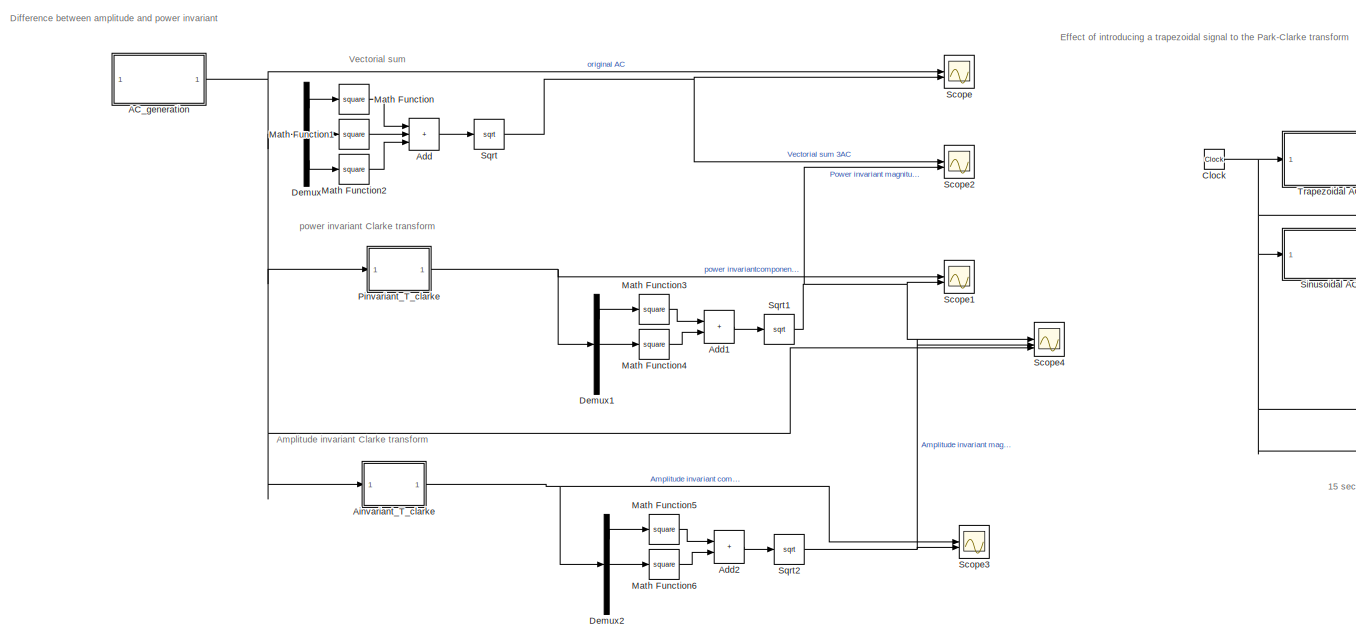
[diagram: root canvas - part 1/3, central region]
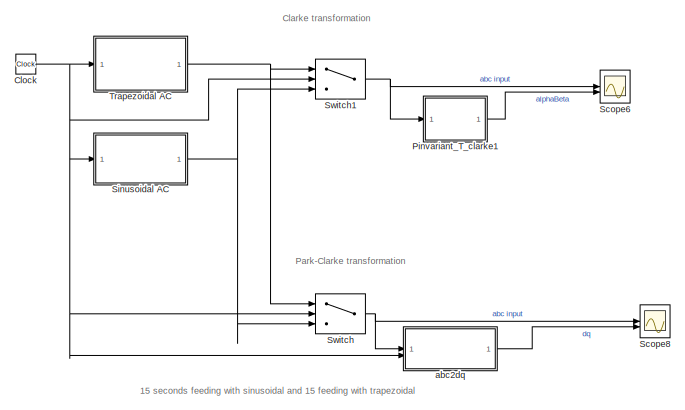
[diagram: root canvas - part 2/3, top right region]
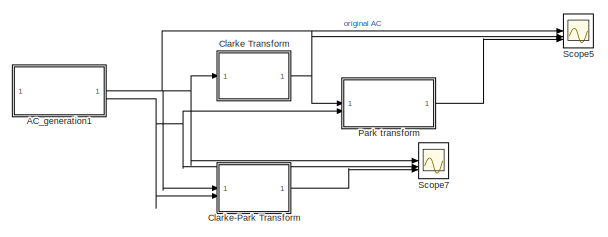
[diagram: root canvas - part 3/3, bottom center region]
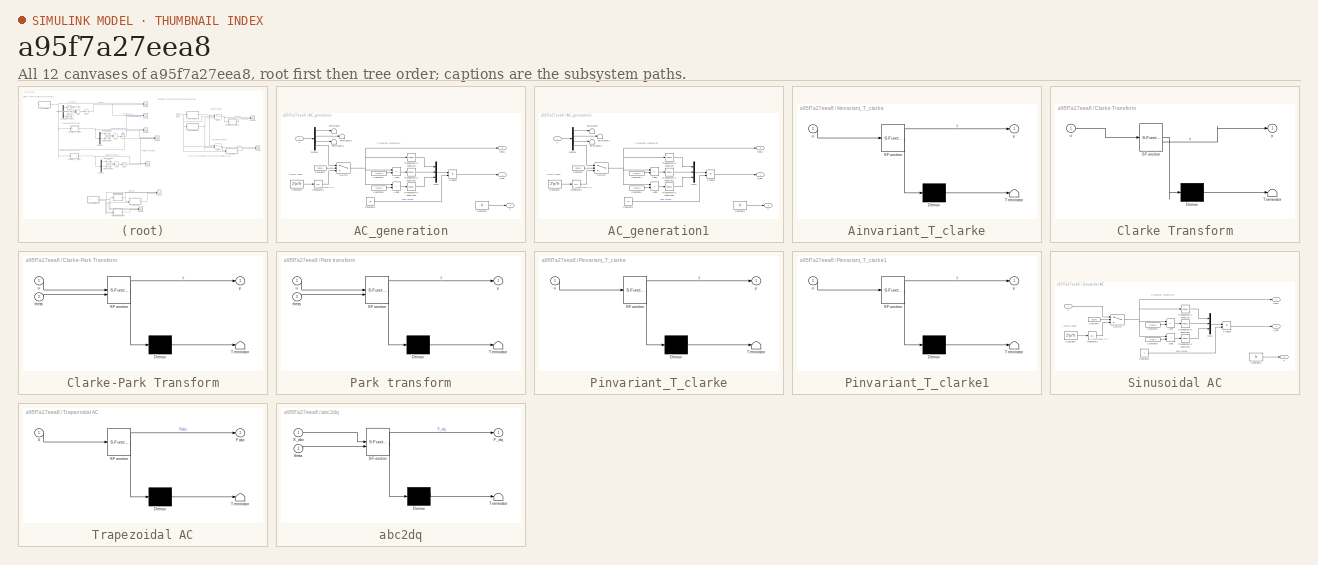
[diagram: thumbnail index - all 12 canvases of the model, root first then tree order]
MODEL slx_a95f7a27eea8
KIND model
CONFIG AbsTol = auto
CONFIG EnableMultiTasking = off
CONFIG FixedStep = 0.0001
CONFIG MaxStep = auto
CONFIG MinStep = auto
CONFIG RelTol = 1e-3
CONFIG SampleTimeConstraint = Unconstrained
CONFIG SolverName = FixedStepAuto
CONFIG StartTime = 0.0
CONFIG StopTime = 2
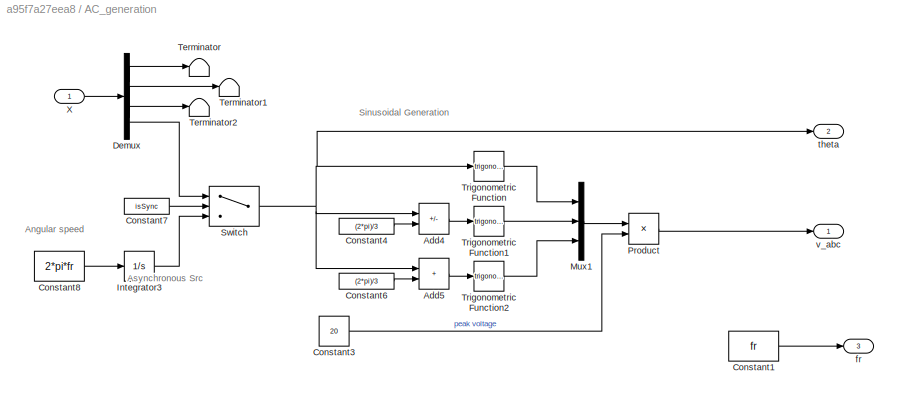
BLOCK [SubSystem] AC_generation
BLOCK [Sum] AC_generation/Add4
  IconShape = rectangular
  Inputs = +-
BLOCK [Sum] AC_generation/Add5
  IconShape = rectangular
BLOCK [Constant] AC_generation/Constant1
  Value = fr
BLOCK [Constant] AC_generation/Constant3
  Value = 20
BLOCK [Constant] AC_generation/Constant4
  Value = (2*pi)/3
BLOCK [Constant] AC_generation/Constant6
  Value = (2*pi)/3
BLOCK [Constant] AC_generation/Constant7
  Value = isSync
BLOCK [Constant] AC_generation/Constant8
  Value = 2*pi*fr
BLOCK [Demux] AC_generation/Demux
BLOCK [Integrator] AC_generation/Integrator3
BLOCK [Mux] AC_generation/Mux1
  DisplayOption = bar
  Inputs = 3
BLOCK [Product] AC_generation/Product
BLOCK [Switch] AC_generation/Switch
  Criteria = u2 > Threshold
  InputSameDT = off
  SaturateOnIntegerOverflow = off
BLOCK [Terminator] AC_generation/Terminator
BLOCK [Terminator] AC_generation/Terminator1
BLOCK [Terminator] AC_generation/Terminator2
BLOCK [Trigonometry] AC_generation/Trigonometric Function
BLOCK [Trigonometry] AC_generation/Trigonometric Function1
BLOCK [Trigonometry] AC_generation/Trigonometric Function2
BLOCK [Inport] AC_generation/X
BLOCK [Outport] AC_generation/fr
  Port = 3
BLOCK [Outport] AC_generation/theta
  Port = 2
BLOCK [Outport] AC_generation/v_abc
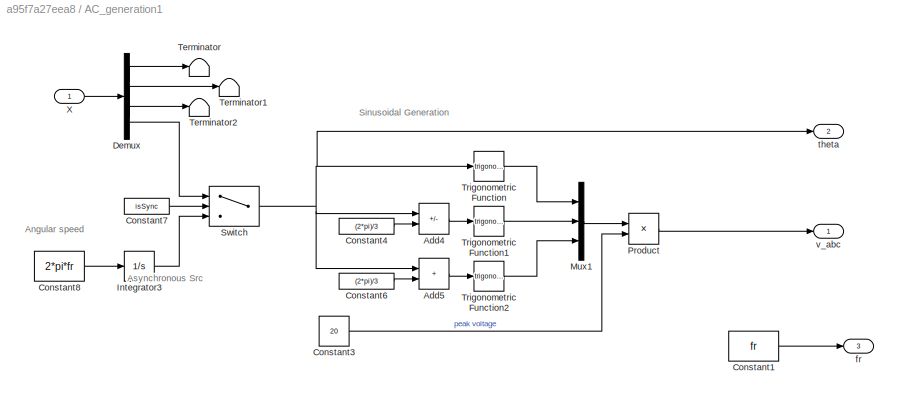
BLOCK [SubSystem] AC_generation1
BLOCK [Sum] AC_generation1/Add4
  IconShape = rectangular
  Inputs = +-
BLOCK [Sum] AC_generation1/Add5
  IconShape = rectangular
BLOCK [Constant] AC_generation1/Constant1
  Value = fr
BLOCK [Constant] AC_generation1/Constant3
  Value = 20
BLOCK [Constant] AC_generation1/Constant4
  Value = (2*pi)/3
BLOCK [Constant] AC_generation1/Constant6
  Value = (2*pi)/3
BLOCK [Constant] AC_generation1/Constant7
  Value = isSync
BLOCK [Constant] AC_generation1/Constant8
  Value = 2*pi*fr
BLOCK [Demux] AC_generation1/Demux
BLOCK [Integrator] AC_generation1/Integrator3
BLOCK [Mux] AC_generation1/Mux1
  DisplayOption = bar
  Inputs = 3
BLOCK [Product] AC_generation1/Product
BLOCK [Switch] AC_generation1/Switch
  Criteria = u2 > Threshold
  InputSameDT = off
  SaturateOnIntegerOverflow = off
BLOCK [Terminator] AC_generation1/Terminator
BLOCK [Terminator] AC_generation1/Terminator1
BLOCK [Terminator] AC_generation1/Terminator2
BLOCK [Trigonometry] AC_generation1/Trigonometric Function
BLOCK [Trigonometry] AC_generation1/Trigonometric Function1
BLOCK [Trigonometry] AC_generation1/Trigonometric Function2
BLOCK [Inport] AC_generation1/X
BLOCK [Outport] AC_generation1/fr
  Port = 3
BLOCK [Outport] AC_generation1/theta
  Port = 2
BLOCK [Outport] AC_generation1/v_abc
BLOCK [Sum] Add
  IconShape = rectangular
  Inputs = +++
BLOCK [Sum] Add1
  IconShape = rectangular
BLOCK [Sum] Add2
  IconShape = rectangular
BLOCK [SubSystem] Ainvariant_T_clarke
  ErrorFcn = Stateflow.Translate.translate
  PermitHierarchicalResolution = ExplicitOnly
  SFBlockType = MATLAB Function
  TreatAsAtomicUnit = on
BLOCK [Demux] Ainvariant_T_clarke/ Demux 
  Outputs = 1
BLOCK [S-Function] Ainvariant_T_clarke/ SFunction 
  EnableBusSupport = on
  FunctionName = sf_sfun
  PortCounts = [1 2]
  SFcnIsStateOwnerBlock = off
  SFunctionDeploymentMode = off
  Tag = Stateflow S-Function 1
BLOCK [Terminator] Ainvariant_T_clarke/ Terminator 
BLOCK [Inport] Ainvariant_T_clarke/u
BLOCK [Outport] Ainvariant_T_clarke/y
BLOCK [SubSystem] Clarke Transform
  ErrorFcn = Stateflow.Translate.translate
  LibrarySourceBlock = simulink/User-Defined\nFunctions/MATLAB Function
  PermitHierarchicalResolution = ExplicitOnly
  SFBlockType = MATLAB Function
  TreatAsAtomicUnit = on
BLOCK [Demux] Clarke Transform/ Demux 
  Outputs = 1
BLOCK [S-Function] Clarke Transform/ SFunction 
  EnableBusSupport = on
  FunctionName = sf_sfun
  PortCounts = [1 2]
  SFcnIsStateOwnerBlock = off
  SFunctionDeploymentMode = off
  Tag = Stateflow S-Function 4
BLOCK [Terminator] Clarke Transform/ Terminator 
BLOCK [Inport] Clarke Transform/u
BLOCK [Outport] Clarke Transform/y
BLOCK [SubSystem] Clarke-Park Transform
  ErrorFcn = Stateflow.Translate.translate
  LibrarySourceBlock = simulink/User-Defined\nFunctions/MATLAB Function
  PermitHierarchicalResolution = ExplicitOnly
  SFBlockType = MATLAB Function
  TreatAsAtomicUnit = on
BLOCK [Demux] Clarke-Park Transform/ Demux 
  Outputs = 1
BLOCK [S-Function] Clarke-Park Transform/ SFunction 
  EnableBusSupport = on
  FunctionName = sf_sfun
  PortCounts = [2 2]
  SFcnIsStateOwnerBlock = off
  SFunctionDeploymentMode = off
  Tag = Stateflow S-Function 7
BLOCK [Terminator] Clarke-Park Transform/ Terminator 
BLOCK [Inport] Clarke-Park Transform/theta
  Port = 2
BLOCK [Inport] Clarke-Park Transform/u
BLOCK [Outport] Clarke-Park Transform/y
BLOCK [Clock] Clock
BLOCK [Demux] Demux
  Outputs = 3
BLOCK [Demux] Demux1
  Outputs = 3
BLOCK [Demux] Demux2
  Outputs = 3
BLOCK [Math] Math Function
  Operator = square
BLOCK [Math] Math Function1
  Operator = square
BLOCK [Math] Math Function2
  Operator = square
BLOCK [Math] Math Function3
  Operator = square
BLOCK [Math] Math Function4
  Operator = square
BLOCK [Math] Math Function5
  Operator = square
BLOCK [Math] Math Function6
  Operator = square
BLOCK [SubSystem] Park transform
  ErrorFcn = Stateflow.Translate.translate
  LibrarySourceBlock = simulink/User-Defined\nFunctions/MATLAB Function
  PermitHierarchicalResolution = ExplicitOnly
  SFBlockType = MATLAB Function
  TreatAsAtomicUnit = on
BLOCK [Demux] Park transform/ Demux 
  Outputs = 1
BLOCK [S-Function] Park transform/ SFunction 
  EnableBusSupport = on
  FunctionName = sf_sfun
  PortCounts = [2 2]
  SFcnIsStateOwnerBlock = off
  SFunctionDeploymentMode = off
  Tag = Stateflow S-Function 5
BLOCK [Terminator] Park transform/ Terminator 
BLOCK [Inport] Park transform/theta
  Port = 2
BLOCK [Inport] Park transform/u
BLOCK [Outport] Park transform/y
BLOCK [SubSystem] Pinvariant_T_clarke
  ErrorFcn = Stateflow.Translate.translate
  PermitHierarchicalResolution = ExplicitOnly
  SFBlockType = MATLAB Function
  TreatAsAtomicUnit = on
BLOCK [Demux] Pinvariant_T_clarke/ Demux 
  Outputs = 1
BLOCK [S-Function] Pinvariant_T_clarke/ SFunction 
  EnableBusSupport = on
  FunctionName = sf_sfun
  PortCounts = [1 2]
  SFcnIsStateOwnerBlock = off
  SFunctionDeploymentMode = off
  Tag = Stateflow S-Function 2
BLOCK [Terminator] Pinvariant_T_clarke/ Terminator 
BLOCK [Inport] Pinvariant_T_clarke/u
BLOCK [Outport] Pinvariant_T_clarke/y
BLOCK [SubSystem] Pinvariant_T_clarke1
  ErrorFcn = Stateflow.Translate.translate
  PermitHierarchicalResolution = ExplicitOnly
  SFBlockType = MATLAB Function
  TreatAsAtomicUnit = on
BLOCK [Demux] Pinvariant_T_clarke1/ Demux 
  Outputs = 1
BLOCK [S-Function] Pinvariant_T_clarke1/ SFunction 
  EnableBusSupport = on
  FunctionName = sf_sfun
  PortCounts = [1 2]
  SFcnIsStateOwnerBlock = off
  SFunctionDeploymentMode = off
  Tag = Stateflow S-Function 3
BLOCK [Terminator] Pinvariant_T_clarke1/ Terminator 
BLOCK [Inport] Pinvariant_T_clarke1/u
BLOCK [Outport] Pinvariant_T_clarke1/y
BLOCK [Scope] Scope
  Floating = off
  NumInputPorts = 2
  ScopeSpecificationString = Simulink.scopes.TimeScopeBlockCfg('CurrentConfiguration', extmgr.ConfigurationSet(extmgr.Configuration('Core','General UI',true),extmgr.Configuration('Core','Source UI',true),extmgr.Configuration('Sources','WiredSimulink',true),extmgr.Configuration('Visuals','Time Domain',true,'SerializedDisplays',{struct('MinYLimReal','-25.56186','MaxYLimReal','30.05676','YLabelReal','','MinYLimMag','0.00000','Ma...<+1445ch>
BLOCK [Scope] Scope1
  Floating = off
  NumInputPorts = 2
  ScopeSpecificationString = Simulink.scopes.TimeScopeBlockCfg('CurrentConfiguration', extmgr.ConfigurationSet(extmgr.Configuration('Core','General UI',true),extmgr.Configuration('Core','Source UI',true),extmgr.Configuration('Sources','WiredSimulink',true,'DataLoggingVariableName','ScopeData1'),extmgr.Configuration('Visuals','Time Domain',true,'SerializedDisplays',{struct('MinYLimReal','-30.61862','MaxYLimReal','30.61862','YL...<+1541ch>
BLOCK [Scope] Scope2
  Floating = off
  NumInputPorts = 2
  ScopeSpecificationString = Simulink.scopes.TimeScopeBlockCfg('CurrentConfiguration', extmgr.ConfigurationSet(extmgr.Configuration('Core','General UI',true),extmgr.Configuration('Core','Source UI',true),extmgr.Configuration('Sources','WiredSimulink',true,'DataLoggingVariableName','ScopeData2'),extmgr.Configuration('Visuals','Time Domain',true,'SerializedDisplays',{struct('MinYLimReal','24.4948974278292','MaxYLimReal','24.494...<+1554ch>
BLOCK [Scope] Scope3
  Floating = off
  NumInputPorts = 2
  ScopeSpecificationString = Simulink.scopes.TimeScopeBlockCfg('CurrentConfiguration', extmgr.ConfigurationSet(extmgr.Configuration('Core','General UI',true),extmgr.Configuration('Core','Source UI',true),extmgr.Configuration('Sources','WiredSimulink',true,'DataLoggingVariableName','ScopeData3'),extmgr.Configuration('Visuals','Time Domain',true,'SerializedDisplays',{struct('MinYLimReal','-25.00000','MaxYLimReal','25.00000','YL...<+1517ch>
BLOCK [Scope] Scope4
  Floating = off
  NumInputPorts = 3
  ScopeSpecificationString = Simulink.scopes.TimeScopeBlockCfg('CurrentConfiguration', extmgr.ConfigurationSet(extmgr.Configuration('Core','General UI',true,'FigureColor',[1 1 1]),extmgr.Configuration('Core','Source UI',true),extmgr.Configuration('Sources','WiredSimulink',true,'DataLoggingVariableName','ScopeData4'),extmgr.Configuration('Visuals','Time Domain',true,'SerializedDisplays',{struct('MinYLimReal','-25.56186','MaxYL...<+2292ch>
BLOCK [Scope] Scope5
  Floating = off
  NumInputPorts = 3
  ScopeSpecificationString = Simulink.scopes.TimeScopeBlockCfg('CurrentConfiguration', extmgr.ConfigurationSet(extmgr.Configuration('Core','General UI',true,'FigureColor',[1 1 1]),extmgr.Configuration('Core','Source UI',true),extmgr.Configuration('Sources','WiredSimulink',true,'DataLoggingVariableName','ScopeData1'),extmgr.Configuration('Visuals','Time Domain',true,'PlotType','Line','SerializedDisplays',{struct('MinYLimReal',...<+3903ch>
BLOCK [Scope] Scope6
  Floating = off
  NumInputPorts = 2
  ScopeSpecificationString = Simulink.scopes.TimeScopeBlockCfg('CurrentConfiguration', extmgr.ConfigurationSet(extmgr.Configuration('Core','General UI',true),extmgr.Configuration('Core','Source UI',true),extmgr.Configuration('Sources','WiredSimulink',true,'DataLoggingVariableName','ScopeData2'),extmgr.Configuration('Visuals','Time Domain',true,'SerializedDisplays',{struct('MinYLimReal','-1.25','MaxYLimReal','1.25','YLabelReal...<+2123ch>
BLOCK [Scope] Scope7
  Floating = off
  NumInputPorts = 3
  ScopeSpecificationString = Simulink.scopes.TimeScopeBlockCfg('CurrentConfiguration', extmgr.ConfigurationSet(extmgr.Configuration('Core','General UI',true,'FigureColor',[1 1 1]),extmgr.Configuration('Core','Source UI',true),extmgr.Configuration('Sources','WiredSimulink',true,'DataLoggingVariableName','ScopeData1'),extmgr.Configuration('Visuals','Time Domain',true,'PlotType','Line','SerializedDisplays',{struct('MinYLimReal',...<+3542ch>
BLOCK [Scope] Scope8
  Floating = off
  NumInputPorts = 2
  ScopeSpecificationString = Simulink.scopes.TimeScopeBlockCfg('CurrentConfiguration', extmgr.ConfigurationSet(extmgr.Configuration('Core','General UI',true),extmgr.Configuration('Core','Source UI',true),extmgr.Configuration('Sources','WiredSimulink',true,'DataLoggingVariableName','ScopeData1'),extmgr.Configuration('Visuals','Time Domain',true,'SerializedDisplays',{struct('MinYLimReal','-1.25','MaxYLimReal','1.25','YLabelReal...<+2095ch>
BLOCK [SubSystem] Sinusoidal AC
BLOCK [Sum] Sinusoidal AC/Add4
  IconShape = rectangular
  Inputs = +-
BLOCK [Sum] Sinusoidal AC/Add5
  IconShape = rectangular
BLOCK [Constant] Sinusoidal AC/Constant1
  Value = fr
BLOCK [Constant] Sinusoidal AC/Constant3
BLOCK [Constant] Sinusoidal AC/Constant4
  Value = (2*pi)/3
BLOCK [Constant] Sinusoidal AC/Constant6
  Value = (2*pi)/3
BLOCK [Constant] Sinusoidal AC/Constant7
  Value = isSync
BLOCK [Constant] Sinusoidal AC/Constant8
  Value = 2*pi*fr
BLOCK [Integrator] Sinusoidal AC/Integrator3
BLOCK [Mux] Sinusoidal AC/Mux1
  DisplayOption = bar
  Inputs = 3
BLOCK [Product] Sinusoidal AC/Product
BLOCK [Switch] Sinusoidal AC/Switch
  Criteria = u2 > Threshold
  InputSameDT = off
  SaturateOnIntegerOverflow = off
BLOCK [Trigonometry] Sinusoidal AC/Trigonometric Function
BLOCK [Trigonometry] Sinusoidal AC/Trigonometric Function1
BLOCK [Trigonometry] Sinusoidal AC/Trigonometric Function2
BLOCK [Inport] Sinusoidal AC/X
BLOCK [Outport] Sinusoidal AC/fr
  Port = 3
BLOCK [Outport] Sinusoidal AC/theta
  Port = 2
BLOCK [Outport] Sinusoidal AC/v_abc
BLOCK [Sqrt] Sqrt
BLOCK [Sqrt] Sqrt1
BLOCK [Sqrt] Sqrt2
BLOCK [Switch] Switch
  Criteria = u2 > Threshold
  InputSameDT = off
  SaturateOnIntegerOverflow = off
  Threshold = 15
BLOCK [Switch] Switch1
  Criteria = u2 > Threshold
  InputSameDT = off
  SaturateOnIntegerOverflow = off
  Threshold = 15
BLOCK [SubSystem] Trapezoidal AC
  ErrorFcn = Stateflow.Translate.translate
  PermitHierarchicalResolution = ExplicitOnly
  SFBlockType = MATLAB Function
  TreatAsAtomicUnit = on
BLOCK [Demux] Trapezoidal AC/ Demux 
  Outputs = 1
BLOCK [S-Function] Trapezoidal AC/ SFunction 
  EnableBusSupport = on
  FunctionName = sf_sfun
  PortCounts = [1 2]
  SFcnIsStateOwnerBlock = off
  SFunctionDeploymentMode = off
  Tag = Stateflow S-Function 11
BLOCK [Terminator] Trapezoidal AC/ Terminator 
BLOCK [Outport] Trapezoidal AC/Fabc
  VectorParamsAs1DForOutWhenUnconnected = off
BLOCK [Inport] Trapezoidal AC/X
BLOCK [SubSystem] abc2dq
  ErrorFcn = Stateflow.Translate.translate
  PermitHierarchicalResolution = ExplicitOnly
  SFBlockType = MATLAB Function
  TreatAsAtomicUnit = on
BLOCK [Demux] abc2dq/ Demux 
  Outputs = 1
BLOCK [S-Function] abc2dq/ SFunction 
  EnableBusSupport = on
  FunctionName = sf_sfun
  PortCounts = [2 2]
  SFcnIsStateOwnerBlock = off
  SFunctionDeploymentMode = off
  Tag = Stateflow S-Function 8
BLOCK [Terminator] abc2dq/ Terminator 
BLOCK [Outport] abc2dq/F_dq
  VectorParamsAs1DForOutWhenUnconnected = off
BLOCK [Inport] abc2dq/X_abc
BLOCK [Inport] abc2dq/theta
  Port = 2
ANNOTATION (root): 15 seconds feeding with sinusoidal and 15 feeding with trapezoidal
ANNOTATION (root): Difference between amplitude and power invariant
ANNOTATION (root): Clarke transformation
ANNOTATION (root): Park-Clarke transformation
ANNOTATION (root): Effect of introducing a trapezoidal signal to the Park-Clarke transform
ANNOTATION (root): Amplitude invariant Clarke transform
ANNOTATION (root): power invariant Clarke transform
ANNOTATION (root): Vectorial sum
ANNOTATION AC_generation: Angular speed
ANNOTATION AC_generation: Asynchronous Src
ANNOTATION AC_generation: Sinusoidal Generation
ANNOTATION AC_generation1: Angular speed
ANNOTATION AC_generation1: Asynchronous Src
ANNOTATION AC_generation1: Sinusoidal Generation
ANNOTATION Sinusoidal AC: Angular speed
ANNOTATION Sinusoidal AC: Asynchronous Src
ANNOTATION Sinusoidal AC: Sinusoidal Generation
LINE AC_generation/Add4:1 -> AC_generation/Trigonometric Function1:1
LINE AC_generation/Add5:1 -> AC_generation/Trigonometric Function2:1
LINE AC_generation/Constant1:1 -> AC_generation/fr:1
LINE AC_generation/Constant3:1 -> AC_generation/Product:2
LINE AC_generation/Constant4:1 -> AC_generation/Add4:2
LINE AC_generation/Constant6:1 -> AC_generation/Add5:2
LINE AC_generation/Constant7:1 -> AC_generation/Switch:2
LINE AC_generation/Constant8:1 -> AC_generation/Integrator3:1
LINE AC_generation/Demux:1 -> AC_generation/Terminator:1
LINE AC_generation/Demux:2 -> AC_generation/Terminator1:1
LINE AC_generation/Demux:3 -> AC_generation/Terminator2:1
LINE AC_generation/Demux:4 -> AC_generation/Switch:1
LINE AC_generation/Integrator3:1 -> AC_generation/Switch:3
LINE AC_generation/Mux1:1 -> AC_generation/Product:1
LINE AC_generation/Product:1 -> AC_generation/v_abc:1
NET AC_generation/Switch:1 -> AC_generation/Add4:1, AC_generation/Add5:1, AC_generation/Trigonometric Function:1, AC_generation/theta:1
LINE AC_generation/Trigonometric Function1:1 -> AC_generation/Mux1:2
LINE AC_generation/Trigonometric Function2:1 -> AC_generation/Mux1:3
LINE AC_generation/Trigonometric Function:1 -> AC_generation/Mux1:1
LINE AC_generation/X:1 -> AC_generation/Demux:1
LINE AC_generation1/Add4:1 -> AC_generation1/Trigonometric Function1:1
LINE AC_generation1/Add5:1 -> AC_generation1/Trigonometric Function2:1
LINE AC_generation1/Constant1:1 -> AC_generation1/fr:1
LINE AC_generation1/Constant3:1 -> AC_generation1/Product:2
LINE AC_generation1/Constant4:1 -> AC_generation1/Add4:2
LINE AC_generation1/Constant6:1 -> AC_generation1/Add5:2
LINE AC_generation1/Constant7:1 -> AC_generation1/Switch:2
LINE AC_generation1/Constant8:1 -> AC_generation1/Integrator3:1
LINE AC_generation1/Demux:1 -> AC_generation1/Terminator:1
LINE AC_generation1/Demux:2 -> AC_generation1/Terminator1:1
LINE AC_generation1/Demux:3 -> AC_generation1/Terminator2:1
LINE AC_generation1/Demux:4 -> AC_generation1/Switch:1
LINE AC_generation1/Integrator3:1 -> AC_generation1/Switch:3
LINE AC_generation1/Mux1:1 -> AC_generation1/Product:1
LINE AC_generation1/Product:1 -> AC_generation1/v_abc:1
NET AC_generation1/Switch:1 -> AC_generation1/Add4:1, AC_generation1/Add5:1, AC_generation1/Trigonometric Function:1, AC_generation1/theta:1
LINE AC_generation1/Trigonometric Function1:1 -> AC_generation1/Mux1:2
LINE AC_generation1/Trigonometric Function2:1 -> AC_generation1/Mux1:3
LINE AC_generation1/Trigonometric Function:1 -> AC_generation1/Mux1:1
LINE AC_generation1/X:1 -> AC_generation1/Demux:1
NET AC_generation1:1 -> Clarke Transform:1, Clarke-Park Transform:1, Scope5:1, Scope7:1
NET AC_generation1:2 -> Clarke-Park Transform:2, Park transform:2, Scope7:2
NET AC_generation:1 -> Ainvariant_T_clarke:1, Demux:1, Pinvariant_T_clarke:1, Scope4:3, Scope:1
LINE Add1:1 -> Sqrt1:1
LINE Add2:1 -> Sqrt2:1
LINE Add:1 -> Sqrt:1
NET Ainvariant_T_clarke:1 -> Demux2:1, Scope3:1
NET Clarke Transform:1 -> Park transform:1, Scope5:2
LINE Clarke-Park Transform:1 -> Scope7:3
NET Clock:1 -> Sinusoidal AC:1, Switch1:2, Switch:2, Trapezoidal AC:1, abc2dq:2
LINE Demux1:1 -> Math Function3:1
LINE Demux1:2 -> Math Function4:1
LINE Demux2:1 -> Math Function5:1
LINE Demux2:2 -> Math Function6:1
LINE Demux:1 -> Math Function:1
LINE Demux:2 -> Math Function1:1
LINE Demux:3 -> Math Function2:1
LINE Math Function1:1 -> Add:2
LINE Math Function2:1 -> Add:3
LINE Math Function3:1 -> Add1:1
LINE Math Function4:1 -> Add1:2
LINE Math Function5:1 -> Add2:1
LINE Math Function6:1 -> Add2:2
LINE Math Function:1 -> Add:1
LINE Park transform:1 -> Scope5:3
LINE Pinvariant_T_clarke1:1 -> Scope6:2
NET Pinvariant_T_clarke:1 -> Demux1:1, Scope1:1
LINE Sinusoidal AC/Add4:1 -> Sinusoidal AC/Trigonometric Function1:1
LINE Sinusoidal AC/Add5:1 -> Sinusoidal AC/Trigonometric Function2:1
LINE Sinusoidal AC/Constant1:1 -> Sinusoidal AC/fr:1
LINE Sinusoidal AC/Constant3:1 -> Sinusoidal AC/Product:2
LINE Sinusoidal AC/Constant4:1 -> Sinusoidal AC/Add4:2
LINE Sinusoidal AC/Constant6:1 -> Sinusoidal AC/Add5:2
LINE Sinusoidal AC/Constant7:1 -> Sinusoidal AC/Switch:2
LINE Sinusoidal AC/Constant8:1 -> Sinusoidal AC/Integrator3:1
LINE Sinusoidal AC/Integrator3:1 -> Sinusoidal AC/Switch:3
LINE Sinusoidal AC/Mux1:1 -> Sinusoidal AC/Product:1
LINE Sinusoidal AC/Product:1 -> Sinusoidal AC/v_abc:1
NET Sinusoidal AC/Switch:1 -> Sinusoidal AC/Add4:1, Sinusoidal AC/Add5:1, Sinusoidal AC/Trigonometric Function:1, Sinusoidal AC/theta:1
LINE Sinusoidal AC/Trigonometric Function1:1 -> Sinusoidal AC/Mux1:2
LINE Sinusoidal AC/Trigonometric Function2:1 -> Sinusoidal AC/Mux1:3
LINE Sinusoidal AC/Trigonometric Function:1 -> Sinusoidal AC/Mux1:1
LINE Sinusoidal AC/X:1 -> Sinusoidal AC/Switch:1
NET Sinusoidal AC:1 -> Switch1:3, Switch:3
NET Sqrt1:1 -> Scope1:2, Scope2:2, Scope4:1
NET Sqrt2:1 -> Scope3:2, Scope4:2
NET Sqrt:1 -> Scope2:1, Scope:2
NET Switch1:1 -> Pinvariant_T_clarke1:1, Scope6:1
NET Switch:1 -> Scope8:1, abc2dq:1
NET Trapezoidal AC:1 -> Switch1:1, Switch:1
LINE abc2dq:1 -> Scope8:2
note: NET lines group one-source signal fan-out (src -> all destinations, sorted); 1:1 wires keep LINE
CHART Ainvariant_T_clarke states=1 transitions=1
  STATE_LABEL 'eML_blk_kernel()'
  STATE_LABEL 'SCRIPT:\nfunction y = fcn(u)\n\n\nsC_Tst = 2/3*[ 1        -(1/2)        -(1/2) ; + ...\n             -0       sqrt(3)/2    -sqrt(3)/2; + ...\n            1/2          1/2           1/2];\n\n\ny = sC_Tst*u;\n'
CHART Pinvariant_T_clarke states=1 transitions=1
  STATE_LABEL 'eML_blk_kernel()'
  STATE_LABEL 'SCRIPT:\nfunction y = fcn(u)\n\n\nsC_T = sqrt(2/3)*[    1         -(1/2)        -(1/2);+ ...\n                       0        sqrt(3)/2   -(sqrt(3)/2);+ ...\n                  1/sqrt(2)    1/sqrt(2)    1/sqrt(2)];\n\n\ny = sC_T*u;\n'
CHART Pinvariant_T_clarke1 states=1 transitions=1
  STATE_LABEL 'eML_blk_kernel()'
  STATE_LABEL 'SCRIPT:\nfunction y = fcn(u)\n\n\nsC_T = sqrt(2/3)*[    1         -(1/2)        -(1/2);+ ...\n                       0        sqrt(3)/2   -(sqrt(3)/2);+ ...\n                  1/sqrt(2)    1/sqrt(2)    1/sqrt(2)];\n\n\ny = sC_T*u;\n'
CHART Clarke Transform states=1 transitions=1
  STATE_LABEL 'eML_blk_kernel()'
  STATE_LABEL 'SCRIPT:\nfunction y = ClarkeTrm(u)\n\nsC_T = sqrt(2/3)*[    1         -(1/2)        -(1/2);\n                      0        sqrt(3)/2   -(sqrt(3)/2);\n                   1/sqrt(2)    1/sqrt(2)    1/sqrt(2)];\n\ny = sC_T*u;\n'
CHART Park transform states=1 transitions=1
  STATE_LABEL 'eML_blk_kernel()'
  STATE_LABEL 'SCRIPT:\nfunction y = ParkTrm(u, theta)\n\nsP_T = [  cos(theta)    sin(theta)   0;\n          -sin(theta)   cos(theta)   0;\n             0             0         1];\ny = sP_T*u;\n'
CHART Clarke-Park Transform states=1 transitions=1
  STATE_LABEL 'eML_blk_kernel()'
  STATE_LABEL 'SCRIPT:\nfunction y = CPT(u, theta)\n\nPC_T = (sqrt(2)/2)*[sqrt(3)*cos(theta)  sin(theta)  -sin(theta) ; ...\n                    -sqrt(3)*sin(theta)  cos(theta)  -cos(theta)];\ny = PC_T*u;\n'
CHART abc2dq states=1 transitions=1
  STATE_LABEL 'eML_blk_kernel()'
  STATE_LABEL 'SCRIPT:\nfunction F_dq = fcn(X_abc, theta)\n\n% Park clarke transform eliminating the third element\nPC_T = (sqrt(2)/2)*[sqrt(3)*cos(theta)  sin(theta)  -sin(theta) ; ...\n                    -sqrt(3)*sin(theta)  cos(theta)  -cos(theta)];\n\nF_dq = PC_T*X_abc;\n                \nend'
CHART Trapezoidal AC states=1 transitions=1
  STATE_LABEL 'eML_blk_kernel()'
  STATE_LABEL 'SCRIPT:\nfunction Fabc = fcn(X)\nFabc = [0;0;0];\n    theta = mod(X,2*pi);\n    \n    if (0<=theta)&&(theta<(pi/6))\n        Fa = (6/pi)*theta;\n    elseif ((pi/6)<=theta)&&(theta<(5*pi/6))\n        Fa = 1;\n    elseif ((5*pi/6<=theta))&&(theta<(7*pi/6))\n        Fa = (6/pi)*(pi-theta);\n    elseif ((7*pi/6)<=theta)&&(theta<(11*pi/6))\n        Fa = -1;\n    elseif ((11*pi/6)<=theta)&&(theta<(2*pi))\n        Fa ...<+860ch>'
CHART  states=0 transitions=0
CHART  states=0 transitions=0
CHART  states=0 transitions=0
CHART  states=0 transitions=0
CHART  states=0 transitions=0
CHART  states=0 transitions=0
CHART  states=0 transitions=0
CHART  states=0 transitions=0
